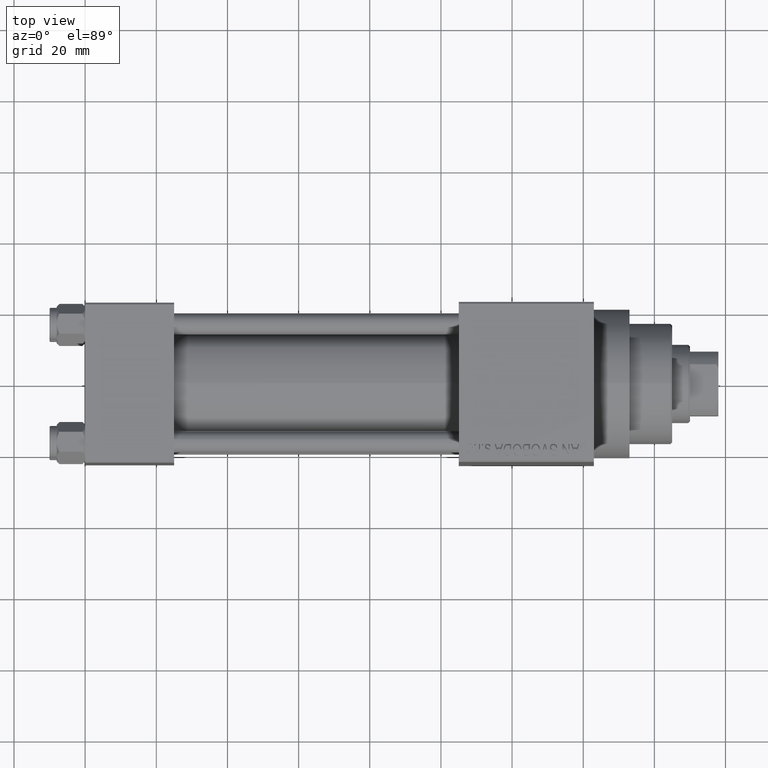
[diagram: clean part render]
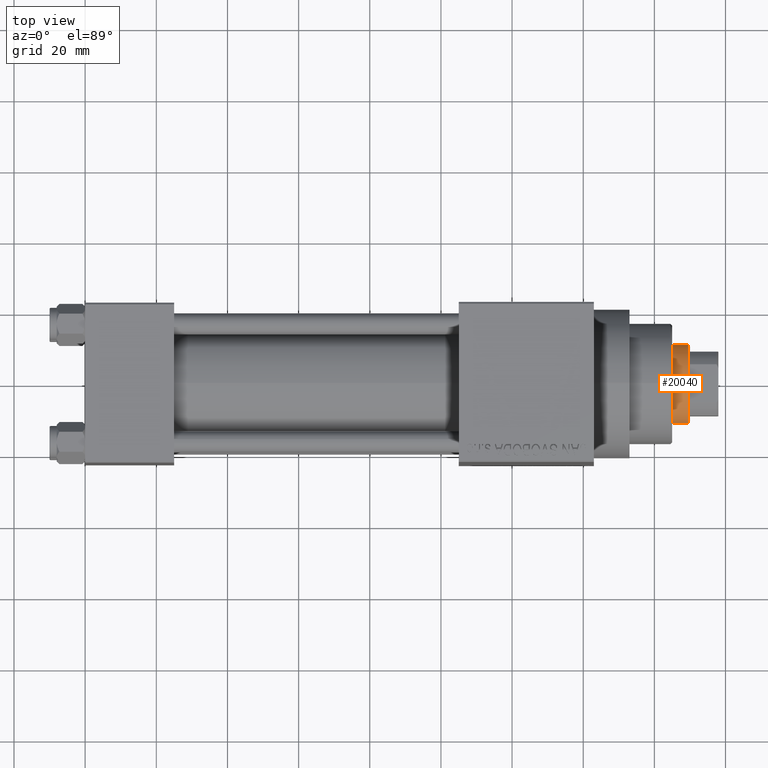
[diagram: same view with one face highlighted and labeled with its STEP entity id]
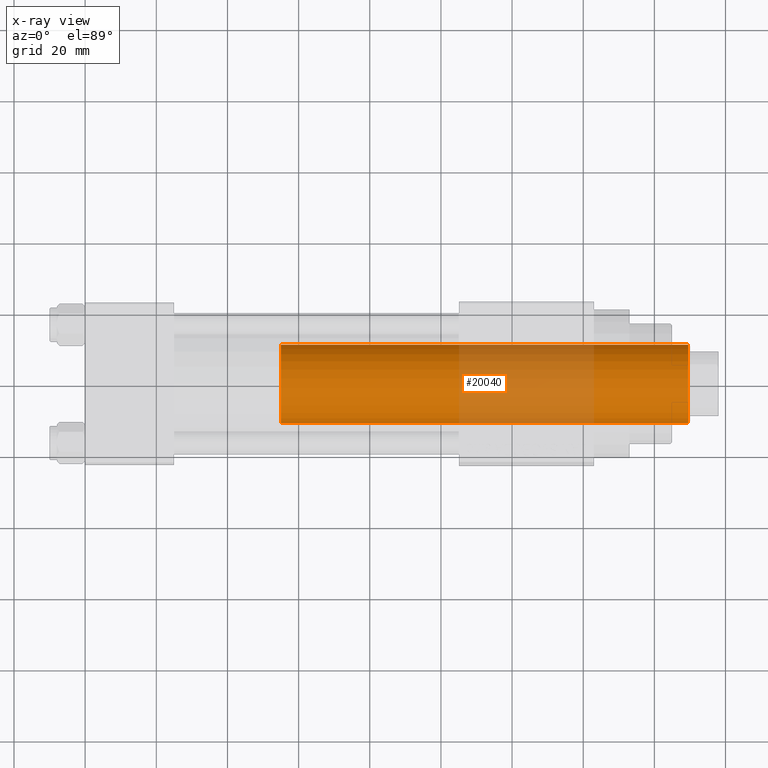
[diagram: x-ray of the same camera — body ghosted, the highlighted face saturated]
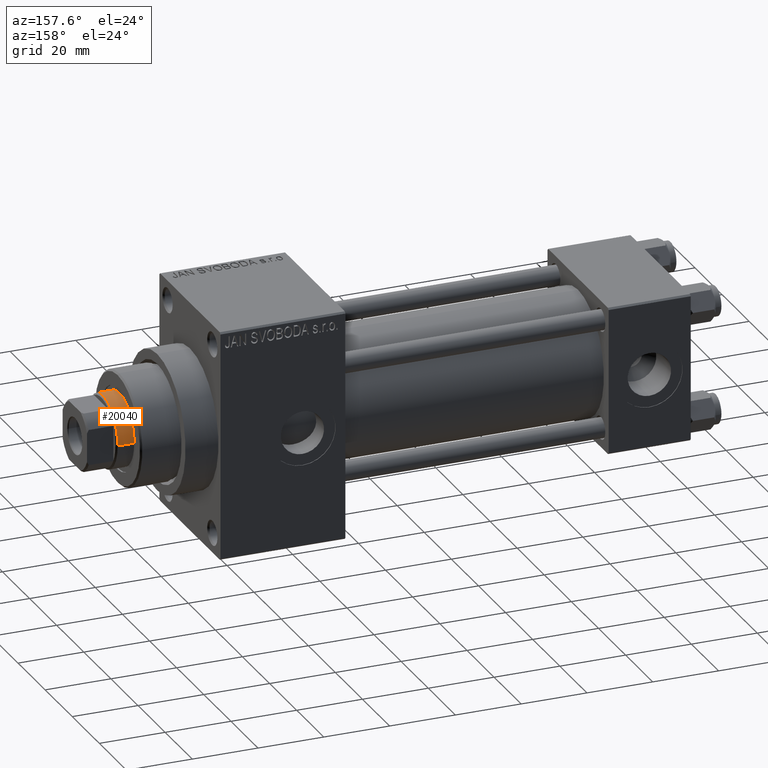
[diagram: same view with one face highlighted and labeled with its STEP entity id]
A machine part, top view. The second image highlights one B-rep face of the part: STEP entity #20040.
The next image is the same camera in x-ray: the body ghosted, the highlighted face saturated — about 33% of this face is hidden behind the body in this view.
A second angle (auxiliary view) of the same face is appended — the face is thin or edge-on in the first view.
In plain terms, the highlighted cylindrical surface (partial cylindrical patch) has radius 11 mm, axis along (-1, 0, 0).
Its self-contained STEP definition (entity closure, byte-faithful):
#812 = ORIENTED_EDGE ( 'NONE', *, *, #1873, .F. ) ;
#1299 = CARTESIAN_POINT ( 'NONE',  ( -11.00000000000000000, 0.000000000000000000, 145.0000000000000284 ) ) ;
#1546 = DIRECTION ( 'NONE',  ( 0.000000000000000000, 0.000000000000000000, 1.000000000000000000 ) ) ;
#1873 = EDGE_CURVE ( 'NONE', #34049, #2903, #34788, .T. ) ;
#2018 = CARTESIAN_POINT ( 'NONE',  ( 0.000000000000000000, 0.000000000000000000, 30.00000000000000000 ) ) ;
#2807 = CARTESIAN_POINT ( 'NONE',  ( 0.000000000000000000, 0.000000000000000000, 144.5000000000000284 ) ) ;
#2903 = VERTEX_POINT ( 'NONE', #10267 ) ;
#3698 = VERTEX_POINT ( 'NONE', #44879 ) ;
#6431 = ORIENTED_EDGE ( 'NONE', *, *, #16381, .T. ) ;
#6817 = EDGE_LOOP ( 'NONE', ( #812, #6431, #8062, #25718 ) ) ;
#7283 = AXIS2_PLACEMENT_3D ( 'NONE', #2018, #1546, #27106 ) ;
#7904 = DIRECTION ( 'NONE',  ( -0.000000000000000000, -0.000000000000000000, -1.000000000000000000 ) ) ;
#8062 = ORIENTED_EDGE ( 'NONE', *, *, #20407, .T. ) ;
#10267 = CARTESIAN_POINT ( 'NONE',  ( 11.00000000000000000, 1.347111479062088405E-15, 30.00000000000000000 ) ) ;
#10524 = DIRECTION ( 'NONE',  ( -0.000000000000000000, -0.000000000000000000, -1.000000000000000000 ) ) ;
#15852 = DIRECTION ( 'NONE',  ( -0.000000000000000000, -0.000000000000000000, -1.000000000000000000 ) ) ;
#16381 = EDGE_CURVE ( 'NONE', #34049, #3698, #45814, .T. ) ;
#17354 = DIRECTION ( 'NONE',  ( 1.000000000000000000, 0.000000000000000000, 0.000000000000000000 ) ) ;
#17765 = VECTOR ( 'NONE', #15852, 1000.000000000000000 ) ;
#20040 = ADVANCED_FACE ( 'NONE', ( #31764 ), #43188, .T. ) ;
#20407 = EDGE_CURVE ( 'NONE', #3698, #32624, #29713, .T. ) ;
#24528 = DIRECTION ( 'NONE',  ( 0.000000000000000000, 0.000000000000000000, -1.000000000000000000 ) ) ;
#24818 = CARTESIAN_POINT ( 'NONE',  ( -11.00000000000000000, 0.000000000000000000, 30.00000000000000000 ) ) ;
#25718 = ORIENTED_EDGE ( 'NONE', *, *, #28983, .T. ) ;
#25827 = CARTESIAN_POINT ( 'NONE',  ( 11.00000000000000000, 1.347111479062088405E-15, 144.5000000000000284 ) ) ;
#27106 = DIRECTION ( 'NONE',  ( 1.000000000000000000, 0.000000000000000000, 0.000000000000000000 ) ) ;
#28195 = CARTESIAN_POINT ( 'NONE',  ( 0.000000000000000000, 0.000000000000000000, 145.0000000000000284 ) ) ;
#28613 = CIRCLE ( 'NONE', #7283, 11.00000000000000000 ) ;
#28983 = EDGE_CURVE ( 'NONE', #32624, #2903, #28613, .T. ) ;
#29713 = LINE ( 'NONE', #1299, #17765 ) ;
#31764 = FACE_OUTER_BOUND ( 'NONE', #6817, .T. ) ;
#32624 = VERTEX_POINT ( 'NONE', #24818 ) ;
#34049 = VERTEX_POINT ( 'NONE', #25827 ) ;
#34788 = LINE ( 'NONE', #44625, #42562 ) ;
#35158 = AXIS2_PLACEMENT_3D ( 'NONE', #2807, #24528, #17354 ) ;
#42153 = AXIS2_PLACEMENT_3D ( 'NONE', #28195, #10524, #42721 ) ;
#42562 = VECTOR ( 'NONE', #7904, 1000.000000000000000 ) ;
#42721 = DIRECTION ( 'NONE',  ( -1.000000000000000000, 0.000000000000000000, 0.000000000000000000 ) ) ;
#43188 = CYLINDRICAL_SURFACE ( 'NONE', #42153, 11.00000000000000000 ) ;
#44625 = CARTESIAN_POINT ( 'NONE',  ( 11.00000000000000000, 1.347111479062088405E-15, 145.0000000000000284 ) ) ;
#44879 = CARTESIAN_POINT ( 'NONE',  ( -11.00000000000000000, 0.000000000000000000, 144.5000000000000284 ) ) ;
#45814 = CIRCLE ( 'NONE', #35158, 11.00000000000000000 ) ;